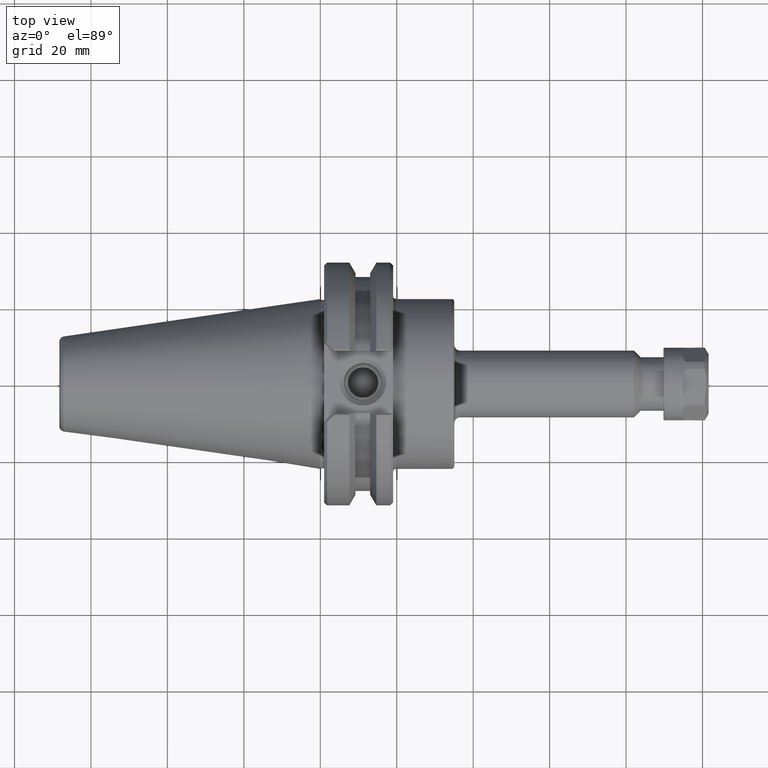
[diagram: clean part render]
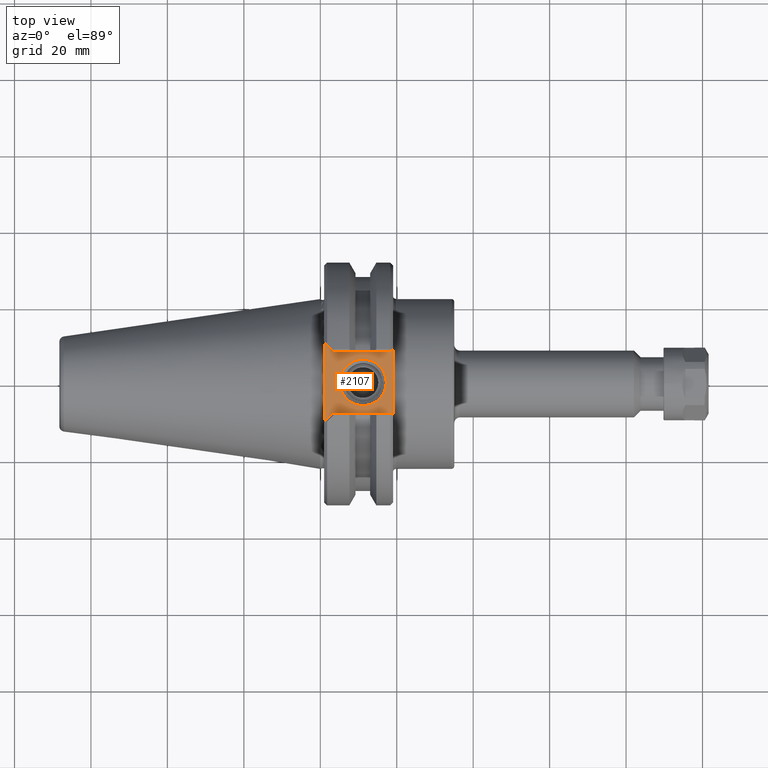
[diagram: same view with one face highlighted and labeled with its STEP entity id]
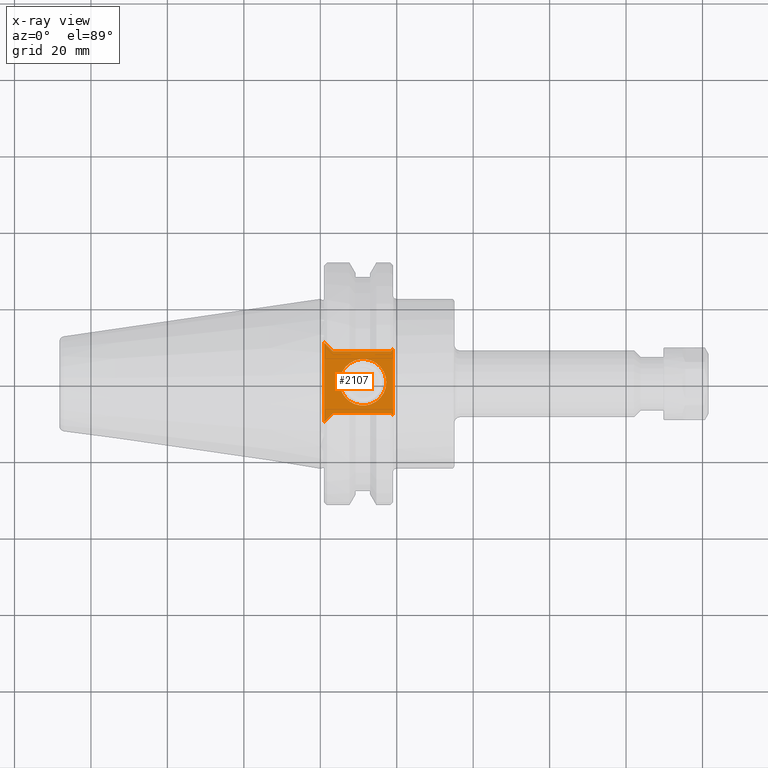
[diagram: x-ray of the same camera — body ghosted, the highlighted face saturated]
A machine part, top view. The second image highlights one B-rep face of the part: STEP entity #2107.
The next image is the same camera in x-ray: the body ghosted, the highlighted face saturated — about 0% of this face is hidden behind the body in this view.
In plain terms, the highlighted planar face has unit normal (-0, -0, 1).
Its self-contained STEP definition (entity closure, byte-faithful):
#150=LINE('',#3062,#264);
#163=LINE('',#3811,#277);
#166=LINE('',#3979,#280);
#168=LINE('',#3991,#282);
#169=LINE('',#3992,#283);
#170=LINE('',#3993,#284);
#171=LINE('',#3995,#285);
#172=LINE('',#3996,#286);
#264=VECTOR('',#2463,0.69);
#277=VECTOR('',#2564,0.127279220613579);
#280=VECTOR('',#2569,0.127279220613578);
#282=VECTOR('',#2583,0.0353553390593273);
#283=VECTOR('',#2584,0.5952);
#284=VECTOR('',#2585,0.82);
#285=VECTOR('',#2586,0.5952);
#286=VECTOR('',#2587,0.0353553390593274);
#382=PLANE('',#2268);
#455=FACE_BOUND('',#676,.T.);
#524=FACE_OUTER_BOUND('',#675,.T.);
#675=EDGE_LOOP('',(#1532,#1533,#1534,#1535,#1536,#1537,#1538,#1539));
#676=EDGE_LOOP('',(#1540));
#841=CIRCLE('',#2265,0.2395);
#937=VERTEX_POINT('',#3059);
#938=VERTEX_POINT('',#3061);
#986=VERTEX_POINT('',#3808);
#987=VERTEX_POINT('',#3810);
#990=VERTEX_POINT('',#3976);
#991=VERTEX_POINT('',#3978);
#993=VERTEX_POINT('',#3984);
#995=VERTEX_POINT('',#3990);
#996=VERTEX_POINT('',#3994);
#1145=EDGE_CURVE('',#938,#937,#150,.T.);
#1202=EDGE_CURVE('',#986,#987,#163,.F.);
#1208=EDGE_CURVE('',#990,#991,#166,.F.);
#1211=EDGE_CURVE('',#993,#993,#841,.T.);
#1213=EDGE_CURVE('',#995,#937,#168,.F.);
#1214=EDGE_CURVE('',#995,#991,#169,.T.);
#1215=EDGE_CURVE('',#987,#990,#170,.T.);
#1216=EDGE_CURVE('',#986,#996,#171,.T.);
#1217=EDGE_CURVE('',#938,#996,#172,.F.);
#1532=ORIENTED_EDGE('',*,*,#1145,.T.);
#1533=ORIENTED_EDGE('',*,*,#1213,.F.);
#1534=ORIENTED_EDGE('',*,*,#1214,.T.);
#1535=ORIENTED_EDGE('',*,*,#1208,.F.);
#1536=ORIENTED_EDGE('',*,*,#1215,.F.);
#1537=ORIENTED_EDGE('',*,*,#1202,.F.);
#1538=ORIENTED_EDGE('',*,*,#1216,.T.);
#1539=ORIENTED_EDGE('',*,*,#1217,.F.);
#1540=ORIENTED_EDGE('',*,*,#1211,.F.);
#2107=ADVANCED_FACE('',(#524,#455),#382,.T.);
#2265=AXIS2_PLACEMENT_3D('',#3985,#2575,#2576);
#2268=AXIS2_PLACEMENT_3D('',#3989,#2581,#2582);
#2463=DIRECTION('',(0.,1.,2.4701457228374E-31));
#2564=DIRECTION('',(0.707106781186548,0.707106781186547,3.52962766101561E-31));
#2569=DIRECTION('',(-0.707106781186548,0.707106781186547,-3.63140787410752E-33));
#2575=DIRECTION('center_axis',(-2.5215015854981E-31,-2.4701457228374E-31,
1.));
#2576=DIRECTION('ref_axis',(-1.,6.22847635654585E-62,-2.5215015854981E-31));
#2581=DIRECTION('center_axis',(-2.5215015854981E-31,-2.4701457228374E-31,
1.));
#2582=DIRECTION('ref_axis',(1.,0.,0.));
#2583=DIRECTION('',(-0.707106781186548,-0.707106781186548,-3.52962766101561E-31));
#2584=DIRECTION('',(-1.,-2.59294046856269E-16,0.));
#2585=DIRECTION('',(0.,1.,2.4701457228374E-31));
#2586=DIRECTION('',(1.,3.70420066937528E-17,0.));
#2587=DIRECTION('',(0.707106781186549,-0.707106781186546,3.63140787410777E-33));
#3059=CARTESIAN_POINT('',(0.75,0.345000000000281,0.972));
#3061=CARTESIAN_POINT('',(0.75,-0.344999999999719,0.972));
#3062=CARTESIAN_POINT('',(0.75,0.53125000000014,0.972));
#3808=CARTESIAN_POINT('',(0.1298,-0.319999999999719,0.972));
#3810=CARTESIAN_POINT('',(0.0397999999999998,-0.409999999999719,0.972));
#3811=CARTESIAN_POINT('',(0.337278137607462,-0.112521862392257,0.972));
#3976=CARTESIAN_POINT('',(0.0397999999999998,0.410000000000281,0.972));
#3978=CARTESIAN_POINT('',(0.1298,0.320000000000281,0.972));
#3979=CARTESIAN_POINT('',(0.337278137607462,0.112521862392819,0.972));
#3984=CARTESIAN_POINT('',(0.6795,2.90248677286052E-13,0.972));
#3985=CARTESIAN_POINT('Origin',(0.44,2.90219346995212E-13,0.972));
#3989=CARTESIAN_POINT('Origin',(0.729712550429847,2.80941517573655E-13,
0.972));
#3990=CARTESIAN_POINT('',(0.725,0.320000000000281,0.972));
#3991=CARTESIAN_POINT('',(0.652428137607462,0.247428137607743,0.972));
#3992=CARTESIAN_POINT('',(1.2198,0.320000000000281,0.972));
#3993=CARTESIAN_POINT('',(0.0397999999999998,0.53125000000014,0.972));
#3994=CARTESIAN_POINT('',(0.725,-0.319999999999719,0.972));
#3995=CARTESIAN_POINT('',(0.0398000000000007,-0.319999999999719,0.972));
#3996=CARTESIAN_POINT('',(0.652428137607462,-0.247428137607181,0.972));